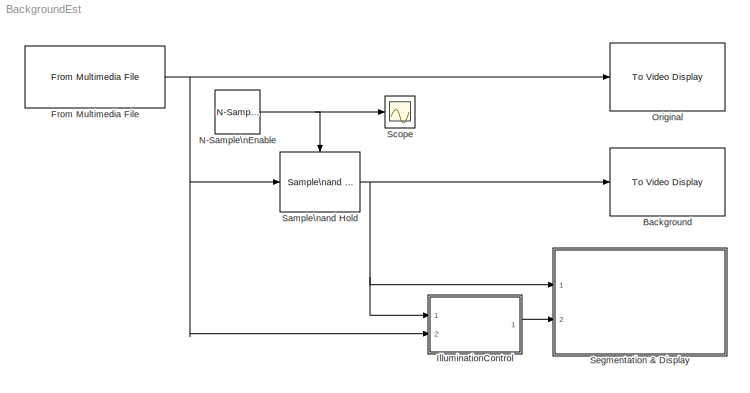
MODEL BackgroundEst
KIND model
BLOCK [Reference] Background  REF=vipsnks/To Video Display
  OutputDevice = On-screen video monitor
  Ports = [1]
  SID = 1
  SourceBlock = vipsnks/To Video Display
  SourceProductBaseCode = VP
  SourceProductName = Computer Vision Toolbox
  SourceType = To Video Display
  dataOrg = Column-major
  fullScreen = off
  imagePorts = One multidimensional signal
  inputType = Obsolete
  saveWindowSize = off
  videoWindowHeight = 41
  videoWindowWidth = 44
  videoWindowX = 292
  videoWindowY = 180
BLOCK [Reference] From Multimedia File  REF=dspsrcs4/From Multimedia File
  Ports = [0, 1]
  SID = 2
  SourceBlock = dspsrcs4/From Multimedia File
  SourceProductBaseCode = DS
  SourceProductName = DSP System Toolbox
  SourceType = From Multimedia File
  audioDataType = int16
  colorVideoFormat = One multidimensional signal
  dataOrg = Column-major
  inheritSampleTime = on
  inputFilename = vipmen.avi
  isIntensityVideo = on
  loop = on
  noAudioOutput = off
  numPlays = inf
  outputEOF = off
  outputStreams = Video only
  userDefinedSampleTime = 1/30
  videoDataType = double
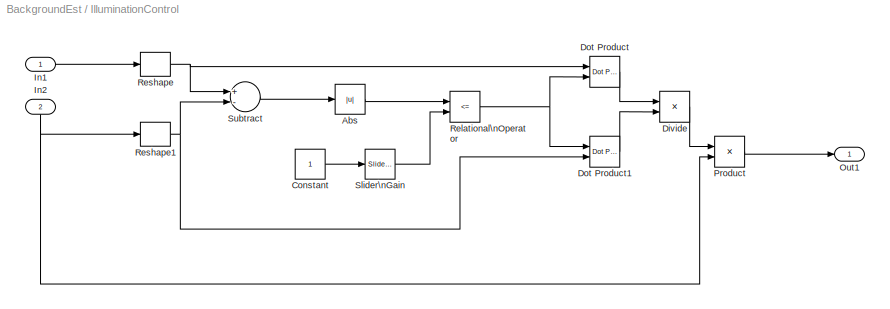
BLOCK [SubSystem] IlluminationControl
  Ports = [2, 1]
  RequestExecContextInheritance = off
  SID = 3
BLOCK [Abs] IlluminationControl/Abs
  SID = 6
  SaturateOnIntegerOverflow = off
BLOCK [Constant] IlluminationControl/Constant
  SID = 7
BLOCK [Product] IlluminationControl/Divide
  InputSameDT = off
  Inputs = */
  OutDataTypeStr = Inherit: Inherit via internal rule
  Ports = [2, 1]
  RndMeth = Floor
  SID = 8
  SaturateOnIntegerOverflow = off
BLOCK [Reference] IlluminationControl/Dot Product  REF=simulink/Math\nOperations/Dot Product
  DoSatur = off
  InputSameDT = off
  LockScale = off
  OutDataType = sfix(16)
  OutDataTypeStr = Inherit: Inherit via internal rule
  OutScaling = 2^-10
  OutputDataTypeScalingMode = Inherit via internal rule
  Ports = [2, 1]
  RndMeth = Floor
  SID = 9
  SourceBlock = simulink/Math\nOperations/Dot Product
  SourceProductBaseCode = SL
  SourceProductName = Simulink
  SourceType = Dot Product
BLOCK [Reference] IlluminationControl/Dot Product1  REF=simulink/Math\nOperations/Dot Product
  DoSatur = off
  InputSameDT = off
  LockScale = off
  OutDataType = sfix(16)
  OutDataTypeStr = Inherit: Inherit via internal rule
  OutScaling = 2^-10
  OutputDataTypeScalingMode = Inherit via internal rule
  Ports = [2, 1]
  RndMeth = Floor
  SID = 10
  SourceBlock = simulink/Math\nOperations/Dot Product
  SourceProductBaseCode = SL
  SourceProductName = Simulink
  SourceType = Dot Product
BLOCK [Inport] IlluminationControl/In1
  IconDisplay = Port number
  SID = 4
BLOCK [Inport] IlluminationControl/In2
  IconDisplay = Port number
  Port = 2
  SID = 5
BLOCK [Outport] IlluminationControl/Out1
  IconDisplay = Port number
  SID = 17
BLOCK [Product] IlluminationControl/Product
  InputSameDT = off
  OutDataTypeStr = Inherit: Inherit via internal rule
  Ports = [2, 1]
  SID = 11
  SaturateOnIntegerOverflow = off
BLOCK [RelationalOperator] IlluminationControl/Relational\nOperator
  InputSameDT = off
  Operator = <=
  OutDataTypeStr = boolean
  Ports = [2, 1]
  SID = 12
BLOCK [Reshape] IlluminationControl/Reshape
  Ports = [1, 1]
  SID = 13
BLOCK [Reshape] IlluminationControl/Reshape1
  Ports = [1, 1]
  SID = 14
BLOCK [Reference] IlluminationControl/Slider\nGain  REF=simulink/Math\nOperations/Slider\nGain
  FunctionWithSeparateData = off
  Ports = [1, 1]
  RTWMemSecDataConstants = Inherit from model
  RTWMemSecDataInternal = Inherit from model
  RTWMemSecDataParameters = Inherit from model
  RTWMemSecFuncExecute = Inherit from model
  RTWMemSecFuncInitTerm = Inherit from model
  SID = 15
  ShowPortLabels = FromPortIcon
  SourceBlock = simulink/Math\nOperations/Slider\nGain
  SourceProductBaseCode = SL
  SourceProductName = Simulink
  SourceType = Slider Gain
  SystemSampleTime = -1
  gain = 0.4
  high = 1
  low = 0
BLOCK [Sum] IlluminationControl/Subtract
  InputSameDT = off
  Inputs = +-
  OutDataTypeStr = Inherit: Inherit via internal rule
  Ports = [2, 1]
  SID = 16
  SaturateOnIntegerOverflow = off
BLOCK [Reference] N-Sample\nEnable  REF=dspswit3/N-Sample\nEnable
  ActiveLevel = High (1)
  DataType = Logical
  N = 1
  Ports = [0, 1]
  SID = 18
  SourceBlock = dspswit3/N-Sample\nEnable
  SourceProductBaseCode = DS
  SourceProductName = DSP System Toolbox
  SourceType = N-Sample Enable
  TriggerType = Rising edge
  Ts = -1
  reset = off
BLOCK [Reference] Original  REF=vipsnks/To Video Display
  OutputDevice = On-screen video monitor
  Ports = [1]
  SID = 19
  SourceBlock = vipsnks/To Video Display
  SourceProductBaseCode = VP
  SourceProductName = Computer Vision Toolbox
  SourceType = To Video Display
  dataOrg = Column-major
  fullScreen = off
  imagePorts = One multidimensional signal
  inputType = Obsolete
  saveWindowSize = off
  videoWindowHeight = 41
  videoWindowWidth = 44
  videoWindowX = 292
  videoWindowY = 32
BLOCK [Reference] Sample\nand Hold  REF=dspsigops/Sample\nand Hold
  FunctionWithSeparateData = off
  Ports = [1, 1, 0, 1]
  RTWMemSecDataConstants = Inherit from model
  RTWMemSecDataInternal = Inherit from model
  RTWMemSecDataParameters = Inherit from model
  RTWMemSecFuncExecute = Inherit from model
  RTWMemSecFuncInitTerm = Inherit from model
  SID = 20
  ShowPortLabels = FromPortIcon
  SourceBlock = dspsigops/Sample\nand Hold
  SourceProductBaseCode = DS
  SourceProductName = DSP System Toolbox
  SourceType = Sample and Hold
  SystemSampleTime = -1
  initCond = 0
  latchinput = off
  trig = Rising edge
BLOCK [Scope] Scope
  Floating = off
  NumInputPorts = 1
  Ports = [1]
  SID = 21
  ScopeSpecificationString = C++SS(StrPVP('Location','[188, 390, 512, 629]'),StrPVP('Open','on'),StrPVP('ZoomMode','xonly'),MxPVP('AxesTitles',54,'struct(''axes1'',''%<SignalLabel>'')'),StrPVP('DataFormat','StructureWithTime'),StrPVP('BlockParamSampleTime','0'),StrPVP('LimitDataPoints','on'),StrPVP('Decimation','1'),StrPVP('BlockParamSampleInput','off'))
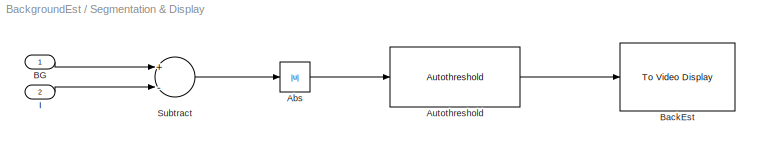
BLOCK [SubSystem] Segmentation & Display
  Ports = [2]
  RequestExecContextInheritance = off
  SID = 22
BLOCK [Abs] Segmentation & Display/Abs
  SID = 25
  SaturateOnIntegerOverflow = off
BLOCK [Reference] Segmentation & Display/Autothreshold  REF=vipconversions/Autothreshold
  A1FracLength = 30
  A1Mode = Same as Product 1
  A1WordLength = 32
  A2FracLength = 22
  A2Mode = Same as Product 2
  A2WordLength = 32
  A3FracLength = 14
  A3Mode = Same as Product 3
  A3WordLength = 32
  A4FracLength = 4
  A4Mode = Same as Product 4
  A4WordLength = 16
  EMFracLength = 14
  EMMode = Specify word length
  EMWordLength = 16
  LockScale = off
  P1FracLength = 30
  P1Mode = Specify word length
  P1WordLength = 32
  P2FracLength = 22
  P2Mode = Specify word length
  P2WordLength = 32
  P3FracLength = 14
  P3Mode = Specify word length
  P3WordLength = 32
  P4FracLength = 15
  P4Mode = Binary point scaling
  P4WordLength = 32
  Ports = [1, 1]
  Q1FracLength = 16
  Q1Mode = Specify word length
  Q1WordLength = 32
  SID = 26
  SourceBlock = vipconversions/Autothreshold
  SourceProductBaseCode = VP
  SourceProductName = Computer Vision Toolbox
  SourceType = Autothreshold
  effMetricOut = off
  operator = >
  outOfRngOpt = Warn and saturate
  overflowMode = off
  roundingMode = Floor
  scaleFactor = 1
  scaleThreshold = off
  threshOut = off
  umax = 255
  umin = 0
  userDefinedRange = off
BLOCK [Inport] Segmentation & Display/BG
  IconDisplay = Port number
  SID = 23
BLOCK [Reference] Segmentation & Display/BackEst  REF=vipsnks/To Video Display
  OutputDevice = On-screen video monitor
  Ports = [1]
  SID = 27
  SourceBlock = vipsnks/To Video Display
  SourceProductBaseCode = VP
  SourceProductName = Computer Vision Toolbox
  SourceType = To Video Display
  dataOrg = Column-major
  fullScreen = off
  imagePorts = One multidimensional signal
  inputType = Obsolete
  saveWindowSize = off
  videoWindowHeight = 41
  videoWindowWidth = 44
  videoWindowX = 290
  videoWindowY = 327
BLOCK [Inport] Segmentation & Display/I
  IconDisplay = Port number
  Port = 2
  SID = 24
BLOCK [Sum] Segmentation & Display/Subtract
  InputSameDT = off
  Inputs = +-
  OutDataTypeStr = Inherit: Inherit via internal rule
  Ports = [2, 1]
  SID = 28
  SaturateOnIntegerOverflow = off
NET From Multimedia File:1 -> IlluminationControl:2, Original:1, Sample\nand Hold:1
LINE IlluminationControl/Abs:1 -> IlluminationControl/Relational\nOperator:1
LINE IlluminationControl/Constant:1 -> IlluminationControl/Slider\nGain:1
LINE IlluminationControl/Divide:1 -> IlluminationControl/Product:1
LINE IlluminationControl/Dot Product1:1 -> IlluminationControl/Divide:2
LINE IlluminationControl/Dot Product:1 -> IlluminationControl/Divide:1
LINE IlluminationControl/In1:1 -> IlluminationControl/Reshape:1
NET IlluminationControl/In2:1 -> IlluminationControl/Product:2, IlluminationControl/Reshape1:1
LINE IlluminationControl/Product:1 -> IlluminationControl/Out1:1
NET IlluminationControl/Relational\nOperator:1 -> IlluminationControl/Dot Product1:1, IlluminationControl/Dot Product:2
NET IlluminationControl/Reshape1:1 -> IlluminationControl/Dot Product1:2, IlluminationControl/Subtract:2
NET IlluminationControl/Reshape:1 -> IlluminationControl/Dot Product:1, IlluminationControl/Subtract:1
LINE IlluminationControl/Slider\nGain:1 -> IlluminationControl/Relational\nOperator:2
LINE IlluminationControl/Subtract:1 -> IlluminationControl/Abs:1
LINE IlluminationControl:1 -> Segmentation & Display:2
NET N-Sample\nEnable:1 -> Sample\nand Hold:trigger, Scope:1
NET Sample\nand Hold:1 -> Background:1, IlluminationControl:1, Segmentation & Display:1
LINE Segmentation & Display/Abs:1 -> Segmentation & Display/Autothreshold:1
LINE Segmentation & Display/Autothreshold:1 -> Segmentation & Display/BackEst:1
LINE Segmentation & Display/BG:1 -> Segmentation & Display/Subtract:1
LINE Segmentation & Display/I:1 -> Segmentation & Display/Subtract:2
LINE Segmentation & Display/Subtract:1 -> Segmentation & Display/Abs:1
note: NET lines group one-source signal fan-out (src -> all destinations, sorted); 1:1 wires keep LINE
